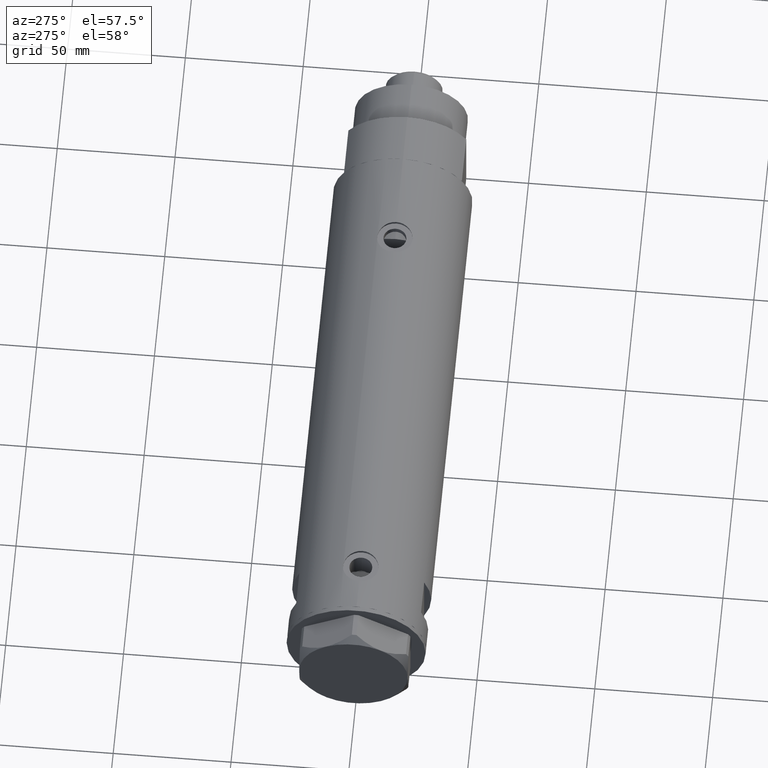
[diagram: clean part render]
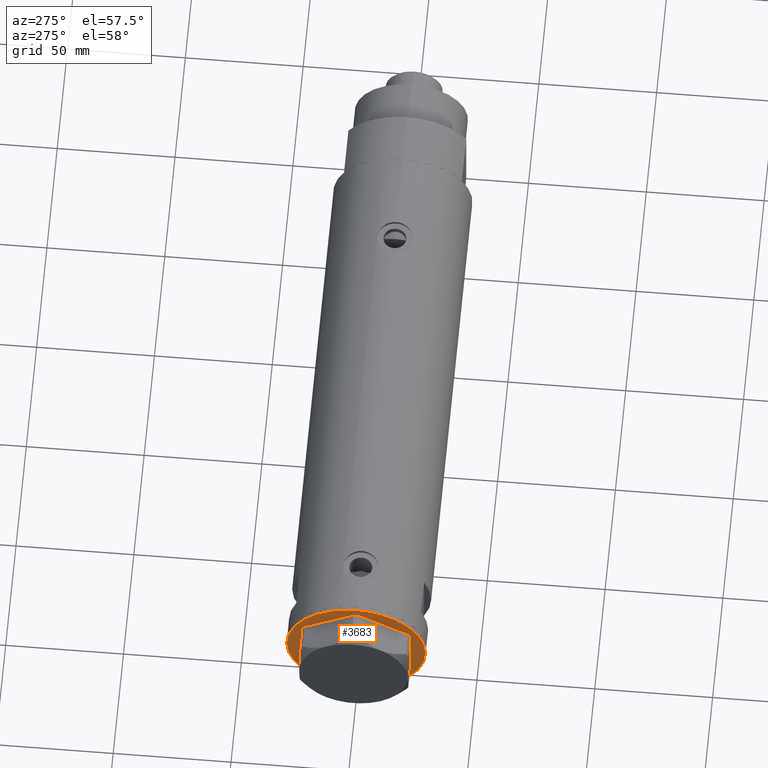
[diagram: same view with one face highlighted and labeled with its STEP entity id]
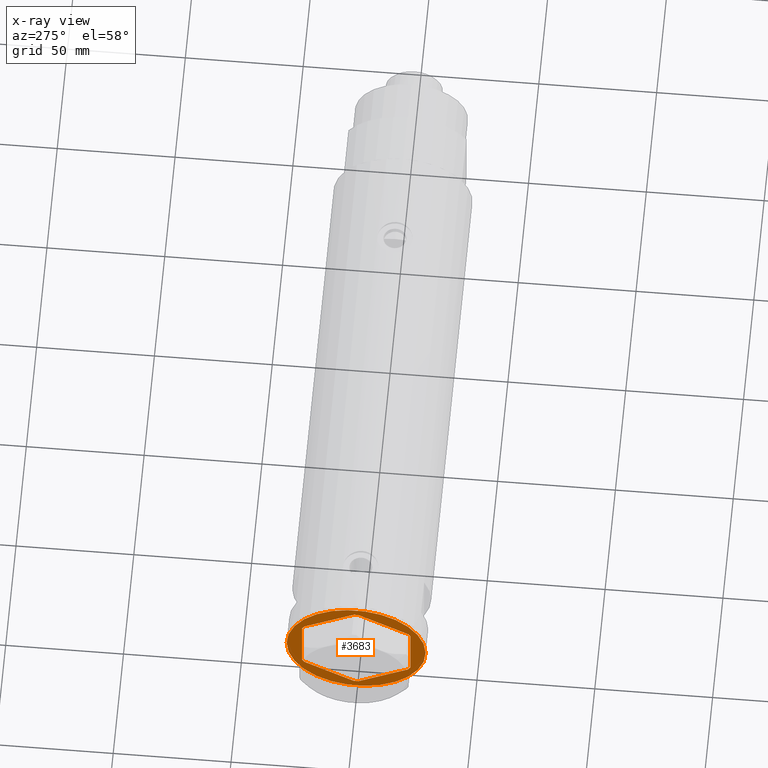
[diagram: x-ray of the same camera — body ghosted, the highlighted face saturated]
A machine part, auxiliary view. The second image highlights one B-rep face of the part: STEP entity #3683.
The next image is the same camera in x-ray: the body ghosted, the highlighted face saturated — about 0% of this face is hidden behind the body in this view.
In plain terms, the highlighted planar face has unit normal (1, 0, -0).
Its self-contained STEP definition (entity closure, byte-faithful):
#13 = ORIENTED_EDGE ( 'NONE', *, *, #3160, .T. ) ;
#28 = DIRECTION ( 'NONE',  ( -1.000000000000000000, 0.000000000000000000, -0.000000000000000000 ) ) ;
#32 = DIRECTION ( 'NONE',  ( 0.000000000000000000, 0.000000000000000000, -1.000000000000000000 ) ) ;
#79 = CARTESIAN_POINT ( 'NONE',  ( 22.51502577388055926, 12.99905619136160162, 0.000000000000000000 ) ) ;
#142 = ORIENTED_EDGE ( 'NONE', *, *, #1632, .F. ) ;
#185 = ORIENTED_EDGE ( 'NONE', *, *, #2809, .F. ) ;
#239 = CARTESIAN_POINT ( 'NONE',  ( -9.299367564803055752E-14, 25.99811238272273428, 0.000000000000000000 ) ) ;
#316 = LINE ( 'NONE', #3212, #2422 ) ;
#328 = VECTOR ( 'NONE', #4451, 1000.000000000000000 ) ;
#420 = VERTEX_POINT ( 'NONE', #4098 ) ;
#436 = DIRECTION ( 'NONE',  ( 0.000000000000000000, 0.000000000000000000, -1.000000000000000000 ) ) ;
#526 = CARTESIAN_POINT ( 'NONE',  ( 23.00000000000008527, -13.27905619136115867, 0.000000000000000000 ) ) ;
#555 = VECTOR ( 'NONE', #3015, 1000.000000000000227 ) ;
#563 = CIRCLE ( 'NONE', #2808, 29.50000000000000355 ) ;
#589 = CARTESIAN_POINT ( 'NONE',  ( -22.99999999999990763, -12.15905619136148985, 0.000000000000000000 ) ) ;
#600 = VERTEX_POINT ( 'NONE', #2590 ) ;
#639 = VECTOR ( 'NONE', #662, 1000.000000000000000 ) ;
#641 = VERTEX_POINT ( 'NONE', #3918 ) ;
#662 = DIRECTION ( 'NONE',  ( 1.000000000000000000, 3.576939520802682722E-15, -0.000000000000000000 ) ) ;
#745 = ORIENTED_EDGE ( 'NONE', *, *, #3281, .F. ) ;
#836 = LINE ( 'NONE', #2698, #2581 ) ;
#873 = FACE_BOUND ( 'NONE', #1369, .T. ) ;
#976 = CARTESIAN_POINT ( 'NONE',  ( 1.854543075583504180E-13, -26.55811238272274366, 0.000000000000000000 ) ) ;
#1080 = CARTESIAN_POINT ( 'NONE',  ( -29.50000000000000355, 3.612708057484692393E-15, 0.000000000000000000 ) ) ;
#1111 = EDGE_LOOP ( 'NONE', ( #745, #185 ) ) ;
#1165 = DIRECTION ( 'NONE',  ( -0.8660254037844380415, -0.5000000000000008882, 0.000000000000000000 ) ) ;
#1182 = VECTOR ( 'NONE', #3808, 999.9999999999998863 ) ;
#1211 = DIRECTION ( 'NONE',  ( 3.527173405730720141E-15, -1.000000000000000000, 0.000000000000000000 ) ) ;
#1238 = VERTEX_POINT ( 'NONE', #589 ) ;
#1244 = VECTOR ( 'NONE', #3322, 1000.000000000000000 ) ;
#1369 = EDGE_LOOP ( 'NONE', ( #1432, #3475, #1617, #1655, #3629, #13, #3497, #2745, #4781, #3989, #142, #4603 ) ) ;
#1378 = CARTESIAN_POINT ( 'NONE',  ( -0.9699484522385893870, 25.99811238272273073, 0.000000000000000000 ) ) ;
#1387 = VERTEX_POINT ( 'NONE', #1080 ) ;
#1411 = DIRECTION ( 'NONE',  ( 0.8660254037844345998, 0.5000000000000069944, 0.000000000000000000 ) ) ;
#1427 = AXIS2_PLACEMENT_3D ( 'NONE', #3788, #436, #28 ) ;
#1432 = ORIENTED_EDGE ( 'NONE', *, *, #2396, .F. ) ;
#1452 = LINE ( 'NONE', #239, #639 ) ;
#1617 = ORIENTED_EDGE ( 'NONE', *, *, #2043, .F. ) ;
#1632 = EDGE_CURVE ( 'NONE', #2811, #3367, #4726, .T. ) ;
#1643 = VERTEX_POINT ( 'NONE', #2636 ) ;
#1655 = ORIENTED_EDGE ( 'NONE', *, *, #4416, .T. ) ;
#1732 = VERTEX_POINT ( 'NONE', #3426 ) ;
#1814 = EDGE_CURVE ( 'NONE', #4455, #641, #4297, .T. ) ;
#1873 = VECTOR ( 'NONE', #3489, 1000.000000000000000 ) ;
#2038 = EDGE_CURVE ( 'NONE', #3443, #4009, #4463, .T. ) ;
#2043 = EDGE_CURVE ( 'NONE', #1732, #4009, #2736, .T. ) ;
#2236 = EDGE_CURVE ( 'NONE', #4786, #3367, #3792, .T. ) ;
#2281 = CARTESIAN_POINT ( 'NONE',  ( 22.03005154776124996, 13.83905619136162635, 0.000000000000000000 ) ) ;
#2287 = LINE ( 'NONE', #3756, #1244 ) ;
#2330 = VECTOR ( 'NONE', #1411, 999.9999999999998863 ) ;
#2338 = EDGE_CURVE ( 'NONE', #2811, #420, #1452, .T. ) ;
#2341 = FACE_OUTER_BOUND ( 'NONE', #1111, .T. ) ;
#2396 = EDGE_CURVE ( 'NONE', #3443, #420, #316, .T. ) ;
#2422 = VECTOR ( 'NONE', #4696, 999.9999999999998863 ) ;
#2438 = VERTEX_POINT ( 'NONE', #4233 ) ;
#2500 = AXIS2_PLACEMENT_3D ( 'NONE', #4698, #2910, #2552 ) ;
#2506 = DIRECTION ( 'NONE',  ( -0.4999999999999915623, -0.8660254037844434816, -0.000000000000000000 ) ) ;
#2552 = DIRECTION ( 'NONE',  ( -1.000000000000000000, 0.000000000000000000, 0.000000000000000000 ) ) ;
#2581 = VECTOR ( 'NONE', #3042, 1000.000000000000000 ) ;
#2590 = CARTESIAN_POINT ( 'NONE',  ( -0.9699484522383873264, -25.99811238272275205, 0.000000000000000000 ) ) ;
#2594 = CARTESIAN_POINT ( 'NONE',  ( 1.859873512960652550E-13, -25.99811238272274139, 0.000000000000000000 ) ) ;
#2636 = CARTESIAN_POINT ( 'NONE',  ( 29.50000000000000355, 0.000000000000000000, 0.000000000000000000 ) ) ;
#2698 = CARTESIAN_POINT ( 'NONE',  ( -22.99999999999990408, -13.27905619136147841, 0.000000000000000000 ) ) ;
#2736 = LINE ( 'NONE', #526, #1873 ) ;
#2745 = ORIENTED_EDGE ( 'NONE', *, *, #4509, .T. ) ;
#2808 = AXIS2_PLACEMENT_3D ( 'NONE', #3294, #32, #3999 ) ;
#2809 = EDGE_CURVE ( 'NONE', #1387, #1643, #4596, .T. ) ;
#2811 = VERTEX_POINT ( 'NONE', #1378 ) ;
#2910 = DIRECTION ( 'NONE',  ( 0.000000000000000000, 0.000000000000000000, -1.000000000000000000 ) ) ;
#2975 = LINE ( 'NONE', #2594, #328 ) ;
#2996 = CARTESIAN_POINT ( 'NONE',  ( -22.03005154776141339, 13.83905619136132792, 0.000000000000000000 ) ) ;
#3015 = DIRECTION ( 'NONE',  ( 0.4999999999999986677, 0.8660254037844392627, -0.000000000000000000 ) ) ;
#3042 = DIRECTION ( 'NONE',  ( 0.8660254037844415942, -0.4999999999999950595, 0.000000000000000000 ) ) ;
#3062 = CARTESIAN_POINT ( 'NONE',  ( -22.99999999999999289, 12.15905619136131754, 0.000000000000000000 ) ) ;
#3160 = EDGE_CURVE ( 'NONE', #4455, #600, #2975, .T. ) ;
#3212 = CARTESIAN_POINT ( 'NONE',  ( 22.99999999999981171, 13.27905619136164184, 0.000000000000000000 ) ) ;
#3281 = EDGE_CURVE ( 'NONE', #1643, #1387, #563, .T. ) ;
#3294 = CARTESIAN_POINT ( 'NONE',  ( 0.000000000000000000, 0.000000000000000000, 0.000000000000000000 ) ) ;
#3322 = DIRECTION ( 'NONE',  ( -0.5000000000000086597, 0.8660254037844337116, -0.000000000000000000 ) ) ;
#3332 = VECTOR ( 'NONE', #2506, 1000.000000000000000 ) ;
#3367 = VERTEX_POINT ( 'NONE', #2996 ) ;
#3370 = EDGE_CURVE ( 'NONE', #2438, #600, #836, .T. ) ;
#3426 = CARTESIAN_POINT ( 'NONE',  ( 23.00000000000007461, -12.15905619136117721, 0.000000000000000000 ) ) ;
#3443 = VERTEX_POINT ( 'NONE', #2281 ) ;
#3475 = ORIENTED_EDGE ( 'NONE', *, *, #2038, .T. ) ;
#3489 = DIRECTION ( 'NONE',  ( -1.032024811306395780E-14, 1.000000000000000000, 0.000000000000000000 ) ) ;
#3497 = ORIENTED_EDGE ( 'NONE', *, *, #3370, .F. ) ;
#3629 = ORIENTED_EDGE ( 'NONE', *, *, #1814, .F. ) ;
#3683 = ADVANCED_FACE ( 'NONE', ( #873, #2341 ), #4183, .F. ) ;
#3756 = CARTESIAN_POINT ( 'NONE',  ( -22.51502577388055215, -12.99905619136159629, 0.000000000000000000 ) ) ;
#3778 = EDGE_CURVE ( 'NONE', #4786, #1238, #4531, .T. ) ;
#3788 = CARTESIAN_POINT ( 'NONE',  ( 0.000000000000000000, 0.000000000000000000, 0.000000000000000000 ) ) ;
#3792 = LINE ( 'NONE', #4535, #555 ) ;
#3808 = DIRECTION ( 'NONE',  ( 0.5000000000000086597, -0.8660254037844337116, -0.000000000000000000 ) ) ;
#3870 = VECTOR ( 'NONE', #1211, 1000.000000000000000 ) ;
#3918 = CARTESIAN_POINT ( 'NONE',  ( 22.03005154776153773, -13.83905619136115561, 0.000000000000000000 ) ) ;
#3989 = ORIENTED_EDGE ( 'NONE', *, *, #2236, .T. ) ;
#3999 = DIRECTION ( 'NONE',  ( -1.000000000000000000, 0.000000000000000000, 0.000000000000000000 ) ) ;
#4006 = LINE ( 'NONE', #4712, #3332 ) ;
#4009 = VERTEX_POINT ( 'NONE', #4788 ) ;
#4053 = CARTESIAN_POINT ( 'NONE',  ( 0.000000000000000000, 26.55811238272274366, 0.000000000000000000 ) ) ;
#4091 = CARTESIAN_POINT ( 'NONE',  ( -22.99999999999999645, 13.27905619136132032, 0.000000000000000000 ) ) ;
#4098 = CARTESIAN_POINT ( 'NONE',  ( 0.9699484522385886098, 25.99811238272273783, 0.000000000000000000 ) ) ;
#4119 = VECTOR ( 'NONE', #1165, 1000.000000000000227 ) ;
#4183 = PLANE ( 'NONE',  #1427 ) ;
#4233 = CARTESIAN_POINT ( 'NONE',  ( -22.03005154776132102, -13.83905619136147536, 0.000000000000000000 ) ) ;
#4297 = LINE ( 'NONE', #976, #2330 ) ;
#4352 = CARTESIAN_POINT ( 'NONE',  ( 0.9699484522387533669, -25.99811238272273428, 0.000000000000000000 ) ) ;
#4416 = EDGE_CURVE ( 'NONE', #1732, #641, #4006, .T. ) ;
#4451 = DIRECTION ( 'NONE',  ( -1.000000000000000000, -7.153879041605523216E-15, -0.000000000000000000 ) ) ;
#4455 = VERTEX_POINT ( 'NONE', #4352 ) ;
#4463 = LINE ( 'NONE', #79, #1182 ) ;
#4509 = EDGE_CURVE ( 'NONE', #2438, #1238, #2287, .T. ) ;
#4531 = LINE ( 'NONE', #4091, #3870 ) ;
#4535 = CARTESIAN_POINT ( 'NONE',  ( -22.51502577388069781, 12.99905619136134050, 0.000000000000000000 ) ) ;
#4596 = CIRCLE ( 'NONE', #2500, 29.50000000000000355 ) ;
#4603 = ORIENTED_EDGE ( 'NONE', *, *, #2338, .T. ) ;
#4696 = DIRECTION ( 'NONE',  ( -0.8660254037844415942, 0.4999999999999949485, 0.000000000000000000 ) ) ;
#4698 = CARTESIAN_POINT ( 'NONE',  ( 0.000000000000000000, 0.000000000000000000, 0.000000000000000000 ) ) ;
#4712 = CARTESIAN_POINT ( 'NONE',  ( 22.51502577388080795, -12.99905619136115398, 0.000000000000000000 ) ) ;
#4726 = LINE ( 'NONE', #4053, #4119 ) ;
#4781 = ORIENTED_EDGE ( 'NONE', *, *, #3778, .F. ) ;
#4786 = VERTEX_POINT ( 'NONE', #3062 ) ;
#4788 = CARTESIAN_POINT ( 'NONE',  ( 22.99999999999982236, 12.15905619136166571, 0.000000000000000000 ) ) ;